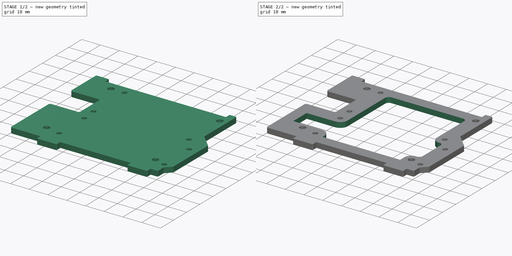
[diagram: build sequence overview — one tinted view per stage of 2, left to right]
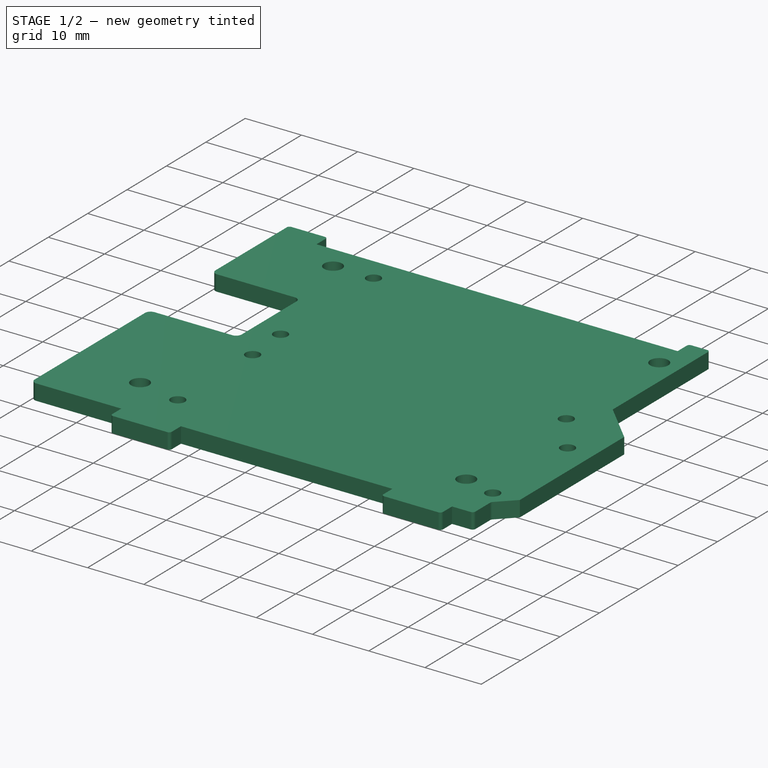
[diagram: stage 1 of 2 — iso view after this stage's code; geometry added in this stage tinted green]
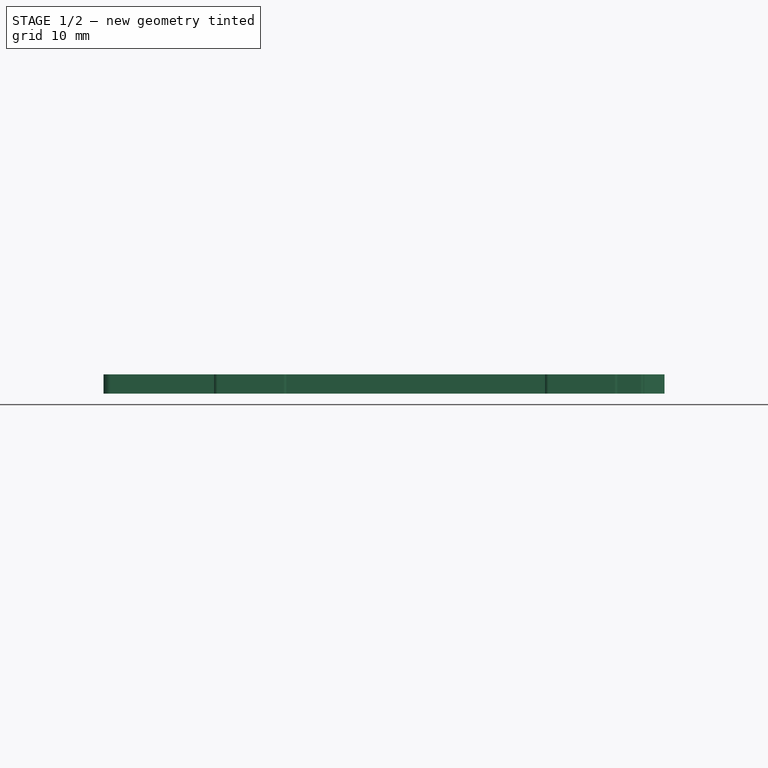
[diagram: stage 1 of 2 — front view after this stage's code; geometry added in this stage tinted green]
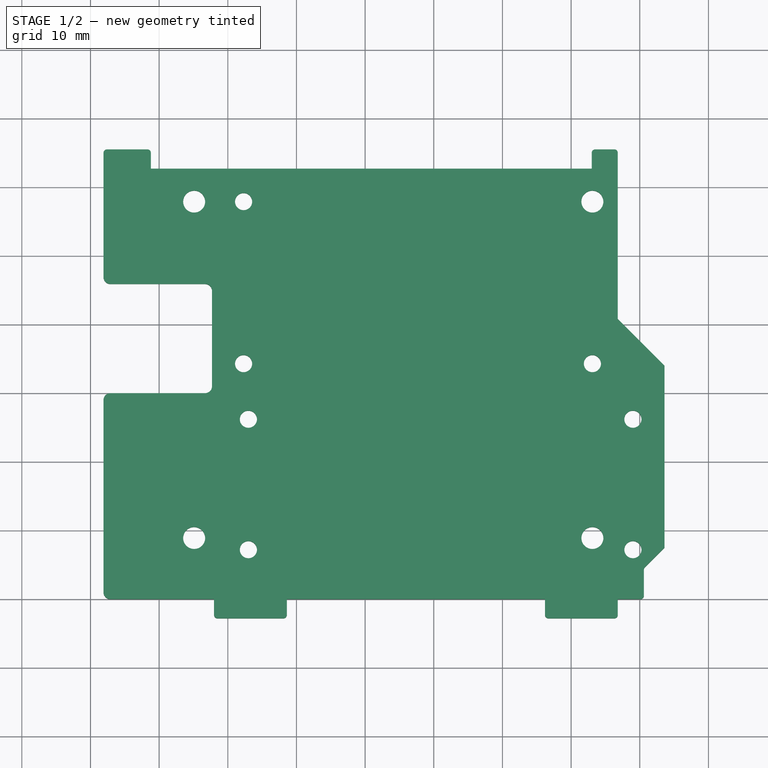
[diagram: stage 1 of 2 — top view after this stage's code; geometry added in this stage tinted green]
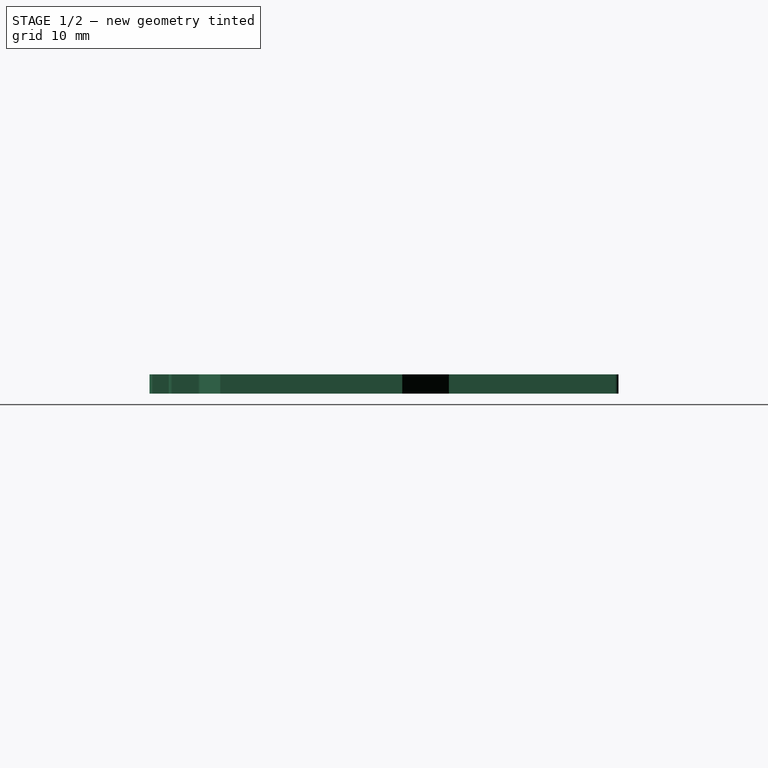
[diagram: stage 1 of 2 — right view after this stage's code; geometry added in this stage tinted green]
FCSTD DOCUMENT  (FreeCAD 0.21R33771 (Git))
Label: electronics_holder_new
License: All rights reserved
LicenseURL: http://en.wikipedia.org/wiki/All_rights_reserved
objects: Sketcher::SketchObject×3, PartDesign::Pad×1, PartDesign::Hole×1, PartDesign::Pocket×1, PartDesign::Body×1
note: 10 computed .brp shape members not serialized (recipe doc carries the construction recipe); baked Part::Feature solids carry a one-line shape summary decoded from their .brp

FEATURE [Sketcher::SketchObject] Sketch
  FullyConstrained = true
  MapMode = 5
  Support = -> [XY_Plane]
  sketch-geometry (54):
    g0: LineSegment StartX=1 StartY=0 StartZ=0 EndX=8 EndY=0 EndZ=0
    g1: LineSegment StartX=8 StartY=0 StartZ=0 EndX=8 EndY=-2.3 EndZ=0
    g2: LineSegment StartX=8.5 StartY=-2.8 StartZ=0 EndX=18.1 EndY=-2.8 EndZ=0
    g3: LineSegment StartX=18.6 StartY=-2.3 StartZ=0 EndX=18.6 EndY=0 EndZ=0
    g4: LineSegment StartX=18.6 StartY=0 StartZ=0 EndX=56.2 EndY=0 EndZ=0
    g5: LineSegment StartX=56.2 StartY=0 StartZ=0 EndX=56.2 EndY=-2.3 EndZ=0
    g6: LineSegment StartX=56.7 StartY=-2.8 StartZ=0 EndX=66.3 EndY=-2.8 EndZ=0
    g7: LineSegment StartX=66.8 StartY=-2.3 StartZ=0 EndX=66.8 EndY=0 EndZ=0
    g8: LineSegment StartX=66.8 StartY=0 StartZ=0 EndX=70.1 EndY=0 EndZ=0
    g9: LineSegment StartX=70.6 StartY=0.5 StartZ=0 EndX=70.6 EndY=4.29289 EndZ=0
    g10: LineSegment StartX=70.7464 StartY=4.64645 StartZ=0 EndX=73.6 EndY=7.5 EndZ=0
    g11: LineSegment StartX=73.6 StartY=7.5 StartZ=0 EndX=73.6 EndY=34 EndZ=0
    g12: LineSegment StartX=73.6 StartY=34 StartZ=0 EndX=66.8 EndY=40.8 EndZ=0
    g13: LineSegment StartX=66.8 StartY=40.8 StartZ=0 EndX=66.8 EndY=65 EndZ=0
    g14: LineSegment StartX=66.3 StartY=65.5 StartZ=0 EndX=63.5 EndY=65.5 EndZ=0
    g15: LineSegment StartX=63 StartY=65 StartZ=0 EndX=63 EndY=62.7 EndZ=0
    g16: LineSegment StartX=63 StartY=62.7 StartZ=0 EndX=-1.2 EndY=62.7 EndZ=0
    g17: LineSegment StartX=-1.2 StartY=62.7 StartZ=0 EndX=-1.2 EndY=65 EndZ=0
    g18: LineSegment StartX=-1.7 StartY=65.5 StartZ=0 EndX=-7.6 EndY=65.5 EndZ=0
    g19: LineSegment StartX=-8.1 StartY=65 StartZ=0 EndX=-8.1 EndY=46.9 EndZ=0
    g20: LineSegment StartX=-7.1 StartY=45.9 StartZ=0 EndX=6.7 EndY=45.9 EndZ=0
    g21: LineSegment StartX=6.7 StartY=18.8 StartZ=0 EndX=1 EndY=18.8 EndZ=0
    g22: LineSegment StartX=0 StartY=1 StartZ=0 EndX=0 EndY=17.8 EndZ=0
    g23: ArcOfCircle CenterX=6.7 CenterY=19.8 CenterZ=0 NormalX=0 NormalY=0 NormalZ=1 AngleXU=0 Radius=1 StartAngle=4.71239 EndAngle=6.28319
    g24: ArcOfCircle CenterX=6.7 CenterY=44.9 CenterZ=0 NormalX=0 NormalY=0 NormalZ=1 AngleXU=0 Radius=1 StartAngle=-9e-16 EndAngle=1.5708
    g25: ArcOfCircle CenterX=-7.1 CenterY=46.9 CenterZ=0 NormalX=0 NormalY=0 NormalZ=1 AngleXU=0 Radius=1 StartAngle=3.14159 EndAngle=4.71239
    g26: ArcOfCircle CenterX=-7.6 CenterY=65 CenterZ=0 NormalX=0 NormalY=0 NormalZ=1 AngleXU=0 Radius=0.5 StartAngle=1.5708 EndAngle=3.14159
    g27: ArcOfCircle CenterX=-1.7 CenterY=65 CenterZ=0 NormalX=0 NormalY=0 NormalZ=1 AngleXU=0 Radius=0.5 StartAngle=-1.24e-14 EndAngle=1.5708
    g28: ArcOfCircle CenterX=66.3 CenterY=65 CenterZ=0 NormalX=0 NormalY=0 NormalZ=1 AngleXU=0 Radius=0.5 StartAngle=4e-16 EndAngle=1.5708
    g29: ArcOfCircle CenterX=70.1 CenterY=0.5 CenterZ=0 NormalX=0 NormalY=0 NormalZ=1 AngleXU=0 Radius=0.5 StartAngle=4.71239 EndAngle=6.28319
    g30: ArcOfCircle CenterX=66.3 CenterY=-2.3 CenterZ=0 NormalX=0 NormalY=0 NormalZ=1 AngleXU=0 Radius=0.5 StartAngle=4.71239 EndAngle=6.28319
    g31: ArcOfCircle CenterX=56.7 CenterY=-2.3 CenterZ=0 NormalX=0 NormalY=0 NormalZ=1 AngleXU=0 Radius=0.5 StartAngle=3.14159 EndAngle=4.71239
    g32: ArcOfCircle CenterX=1 CenterY=17.8 CenterZ=0 NormalX=0 NormalY=0 NormalZ=1 AngleXU=0 Radius=1 StartAngle=1.5708 EndAngle=3.14159
    g33: ArcOfCircle CenterX=1 CenterY=1 CenterZ=0 NormalX=0 NormalY=0 NormalZ=1 AngleXU=0 Radius=1 StartAngle=3.14159 EndAngle=4.71239
    g34: ArcOfCircle CenterX=8.5 CenterY=-2.3 CenterZ=0 NormalX=0 NormalY=0 NormalZ=1 AngleXU=0 Radius=0.5 StartAngle=3.14159 EndAngle=4.71239
    g35: ArcOfCircle CenterX=18.1 CenterY=-2.3 CenterZ=0 NormalX=0 NormalY=0 NormalZ=1 AngleXU=0 Radius=0.5 StartAngle=4.71239 EndAngle=6.28319
    g36: ArcOfCircle CenterX=63.5 CenterY=65 CenterZ=0 NormalX=0 NormalY=0 NormalZ=1 AngleXU=0 Radius=0.5 StartAngle=1.5708 EndAngle=3.14159
    g37: Circle CenterX=5.1 CenterY=57.9 CenterZ=0 NormalX=0 NormalY=0 NormalZ=1 AngleXU=0 Radius=1.6
    g38: Circle CenterX=63.1 CenterY=57.9 CenterZ=0 NormalX=0 NormalY=0 NormalZ=1 AngleXU=0 Radius=1.6
    g39: Circle CenterX=5.1 CenterY=8.9 CenterZ=0 NormalX=0 NormalY=0 NormalZ=1 AngleXU=0 Radius=1.6
    g40: Circle CenterX=63.1 CenterY=8.9 CenterZ=0 NormalX=0 NormalY=0 NormalZ=1 AngleXU=0 Radius=1.6
    g41: LineSegment StartX=5.1 StartY=8.9 StartZ=0 EndX=5.1 EndY=57.9 EndZ=0
    g42: LineSegment StartX=5.1 StartY=57.9 StartZ=0 EndX=63.1 EndY=57.9 EndZ=0
    g43: LineSegment StartX=63.1 StartY=57.9 StartZ=0 EndX=63.1 EndY=8.9 EndZ=0
    g44: LineSegment StartX=63.1 StartY=8.9 StartZ=0 EndX=5.1 EndY=8.9 EndZ=0
    g45: LineSegment StartX=7.7 StartY=44.9 StartZ=0 EndX=7.7 EndY=31 EndZ=0
    g46: LineSegment StartX=7.7 StartY=31 StartZ=0 EndX=7.7 EndY=19.8 EndZ=0
    g47: ArcOfCircle CenterX=6.7 CenterY=31 CenterZ=0 NormalX=0 NormalY=0 NormalZ=1 AngleXU=0 Radius=1 StartAngle=4.71239 EndAngle=6.28319
    g48: LineSegment StartX=6.7 StartY=30 StartZ=0 EndX=-7.1 EndY=30 EndZ=0
    g49: LineSegment StartX=-8.1 StartY=29 StartZ=0 EndX=-8.1 EndY=1 EndZ=0
    g50: LineSegment StartX=-7.1 StartY=0 StartZ=0 EndX=1 EndY=0 EndZ=0
    g51: ArcOfCircle CenterX=-7.1 CenterY=29 CenterZ=0 NormalX=0 NormalY=0 NormalZ=1 AngleXU=0 Radius=1 StartAngle=1.5708 EndAngle=3.14159
    g52: ArcOfCircle CenterX=-7.1 CenterY=1 CenterZ=0 NormalX=0 NormalY=0 NormalZ=1 AngleXU=0 Radius=1 StartAngle=3.14159 EndAngle=4.71239
    g53: ArcOfCircle CenterX=71.1 CenterY=4.29289 CenterZ=0 NormalX=0 NormalY=0 NormalZ=1 AngleXU=0 Radius=0.5 StartAngle=2.35619 EndAngle=3.14159
  constraints (139):
    c: PointOnObject(g0,g-1)
    c: Coincident(g1,g0)
    c: Vertical(g1)
    c: PointOnObject(g3,g-1)
    c: Vertical(g3)
    c: Coincident(g4,g3)
    c: PointOnObject(g4,g-1)
    c: Coincident(g5,g4)
    c: Horizontal(g6)
    c: PointOnObject(g7,g-1)
    c: Vertical(g7)
    c: Horizontal(g8)
    c: Vertical(g9)
    c: Coincident(g11,g10)
    c: Vertical(g11)
    c: Coincident(g12,g11)
    c: Coincident(g13,g12)
    c: Vertical(g13)
    c: Vertical(g15)
    c: Horizontal(g16)
    c: Coincident(g17,g16)
    c: Vertical(g17)
    c: Horizontal(g18)
    c: Vertical(g19)
    c: Horizontal(g20)
    c: Horizontal(g21)
    c: Vertical(g22)
    c: Tangent(g21,g23) = 1.5708
    c: Tangent(g20,g24) = 1.5708
    c: Tangent(g19,g25) = -1.5708
    c: Tangent(g20,g25) = -1.5708
    c: Tangent(g19,g26) = -1.5708
    c: Tangent(g18,g26) = -1.5708
    c: Tangent(g18,g27) = -1.5708
    c: Tangent(g17,g27) = -1.5708
    c: Tangent(g14,g28) = -1.5708
    c: Tangent(g13,g28) = -1.5708
    c: Tangent(g8,g29) = -1.5708
    c: Tangent(g9,g29) = -1.5708
    c: Tangent(g7,g30) = -1.5708
    c: Tangent(g6,g30) = -1.5708
    c: Tangent(g5,g31) = -1.5708
    c: Tangent(g6,g31) = -1.5708
    c: Tangent(g21,g32) = -1.5708
    c: Tangent(g22,g32) = 1.5708
    c: Tangent(g22,g33) = 1.5708
    c: Tangent(g0,g33) = -1.5708
    c: Tangent(g1,g34) = -1.5708
    c: Tangent(g2,g34) = -1.5708
    c: Tangent(g3,g35) = -1.5708
    c: Tangent(g2,g35) = -1.5708
    c: Equal(g33,g32)
    c: Equal(g23,g33)
    c: Equal(g24,g33)
    c: Equal(g25,g33)
    c: Radius(g33) = 1
    c: Horizontal(g0)
    c: Horizontal(g2)
    c: Equal(g26,g27)
    c: Equal(g26,g34)
    c: Equal(g35,g26)
    c: Horizontal(g14)
    c: Tangent(g15,g36) = -1.5708
    c: Tangent(g14,g36) = -1.5708
    c: Equal(g36,g26)
    c: Equal(g28,g26)
    c: Equal(g26,g29)
    c: Vertical(g5)
    c: Coincident(g8,g7)
    c: Equal(g30,g26)
    c: Equal(g26,g31)
    c: Radius(g26) = 0.5
    c: DistanceX(g22,g0) = 8
    c: DistanceX(g0,g3) = 10.6
    c: Equal(g2,g6)
    c: DistanceX(g0,g7) = 58.8
    c: DistanceX(g22,g9) = 70.6
    c: DistanceX(g22,g10) = 73.6
    c: DistanceY(g7,g10) = 7.5
    c: DistanceX(g22,g46) = 7.7
    c: DistanceX(g19,g46) = 15.8
    c: DistanceX(g19,g16) = 6.9
    c: DistanceY(g7,g11) = 34
    c: DistanceY(g0,g21) = 18.8
    c: PointOnObject(g-1,g22)
    c: PointOnObject(g2,g6)
    c: DistanceY(g2,g0) = 2.8
    c: DistanceY(g16,g18) = 2.8
    c: PointOnObject(g18,g14)
    c: DistanceY(g21,g20) = 27.1
    c: DistanceY(g0,g16) = 62.7
    c: Angle(g12,g13) = 2.35619
    c: Coincident(g41,g39)
    c: Coincident(g41,g37)
    c: Vertical(g41)
    c: Coincident(g42,g37)
    c: Coincident(g42,g38)
    c: Horizontal(g42)
    c: Coincident(g43,g38)
    c: Coincident(g43,g40)
    c: Coincident(g44,g40)
    c: Coincident(g44,g39)
    c: Horizontal(g44)
    c: Vertical(g43)
    c: Equal(g39,g38)
    c: Equal(g39,g40)
    c: Diameter(g39) = 3.2
    c: DistanceX(g22,g39) = 5.1
    c: DistanceY(g0,g39) = 8.9
    c: DistanceY(g39,g37) = 49
    c: DistanceX(g39,g40) = 58
    c: Equal(g37,g39)
    c: DistanceX(g15,g13) = 3.8
    c: DistanceX(g17,g15) = 64.2
    c: Coincident(g16,g15)
    c: Coincident(g45,g46)
    c: Vertical(g45)
    c: Vertical(g46)
    c: Tangent(g47,g45) = 1.5708
    c: Horizontal(g48)
    c: Vertical(g49)
    c: Horizontal(g50)
    c: Tangent(g48,g51) = -1.5708
    c: Tangent(g49,g51) = -1.5708
    c: Tangent(g49,g52) = -1.5708
    c: Tangent(g50,g52) = -1.5708
    c: Equal(g52,g51)
    c: Equal(g51,g47)
    c: Equal(g47,g33)
    c: DistanceY(g0,g48) = 30
    c: Coincident(g50,g0)
    c: Tangent(g48,g47) = 1.5708
    c: Tangent(g45,g24) = 1.5708
    c: Tangent(g46,g23) = 1.5708
    c: PointOnObject(g19,g49)
    c: Tangent(g10,g53) = 1.5708
    c: Tangent(g9,g53) = 1.5708
    c: Angle(g9,g10) = 2.35619
    c: Equal(g36,g53)
FEATURE [PartDesign::Pad] Pad
  Direction = (0,0,1)
  Length = 2.8
  Length2 = 10
  Profile = -> Sketch
  ReferenceAxis = -> Sketch [N_Axis]
  Type = 0
FEATURE [Sketcher::SketchObject] Sketch001
  ExternalGeometry = -> [Pad]
  FullyConstrained = true
  MapMode = 5
  Placement = pos=(0,0,2.8) rot=(0,0,1;0rad)
  Support = -> [Pad]
  sketch-geometry (16):
    g0: LineSegment StartX=13 StartY=26.2 StartZ=0 EndX=69 EndY=26.2 EndZ=0
    g1: LineSegment StartX=69 StartY=26.2 StartZ=0 EndX=69 EndY=7.2 EndZ=0
    g2: LineSegment StartX=69 StartY=7.2 StartZ=0 EndX=13 EndY=7.2 EndZ=0
    g3: LineSegment StartX=13 StartY=7.2 StartZ=0 EndX=13 EndY=26.2 EndZ=0
    g4: LineSegment StartX=12.3 StartY=57.9 StartZ=0 EndX=63.1 EndY=57.9 EndZ=0
    g5: LineSegment StartX=63.1 StartY=57.9 StartZ=0 EndX=63.1 EndY=34.3 EndZ=0
    g6: LineSegment StartX=63.1 StartY=34.3 StartZ=0 EndX=12.3 EndY=34.3 EndZ=0
    g7: LineSegment StartX=12.3 StartY=34.3 StartZ=0 EndX=12.3 EndY=57.9 EndZ=0
    g8: Circle CenterX=12.3 CenterY=57.9 CenterZ=0 NormalX=0 NormalY=0 NormalZ=1 AngleXU=0 Radius=1.25
    g9: Circle CenterX=12.3 CenterY=34.3 CenterZ=0 NormalX=0 NormalY=0 NormalZ=1 AngleXU=0 Radius=1.25
    g10: Circle CenterX=63.1 CenterY=34.3 CenterZ=0 NormalX=0 NormalY=0 NormalZ=1 AngleXU=0 Radius=1.25
    g11: Circle CenterX=63.1 CenterY=57.9 CenterZ=0 NormalX=0 NormalY=0 NormalZ=1 AngleXU=0 Radius=1.25
    g12: Circle CenterX=13 CenterY=26.2 CenterZ=0 NormalX=0 NormalY=0 NormalZ=1 AngleXU=0 Radius=1.25
    g13: Circle CenterX=13 CenterY=7.2 CenterZ=0 NormalX=0 NormalY=0 NormalZ=1 AngleXU=0 Radius=1.25
    g14: Circle CenterX=69 CenterY=7.2 CenterZ=0 NormalX=0 NormalY=0 NormalZ=1 AngleXU=0 Radius=1.25
    g15: Circle CenterX=69 CenterY=26.2 CenterZ=0 NormalX=0 NormalY=0 NormalZ=1 AngleXU=0 Radius=1.25
  constraints (39):
    c: Coincident(g0,g1)
    c: Coincident(g1,g2)
    c: Coincident(g2,g3)
    c: Coincident(g3,g0)
    c: Horizontal(g0)
    c: Horizontal(g2)
    c: Vertical(g1)
    c: Vertical(g3)
    c: Coincident(g4,g5)
    c: Coincident(g5,g6)
    c: Coincident(g6,g7)
    c: Coincident(g7,g4)
    c: Coincident(g8,g4)
    c: Coincident(g9,g6)
    c: Coincident(g10,g5)
    c: Coincident(g11,g4)
    c: Coincident(g12,g0)
    c: Coincident(g13,g2)
    c: Coincident(g14,g1)
    c: Coincident(g15,g0)
    c: Equal(g13,g12)
    c: Equal(g12,g9)
    c: Equal(g9,g8)
    c: Equal(g8,g11)
    c: Equal(g11,g10)
    c: Equal(g10,g15)
    c: Equal(g15,g14)
    c: Diameter(g13) = 2.5
    c: DistanceY(g3,g3) = 19
    c: DistanceX(g2,g2) = 56
    c: DistanceY(g-1,g13) = 7.2
    c: Distance(g6) = 50.8
    c: Distance(g5) = 23.6
    c: Horizontal(g4)
    c: Vertical(g7)
    c: Vertical(g5)
    c: Horizontal(g6)
    c: Coincident(g11,g-3)
    c: DistanceX(g-1,g13) = 13
FEATURE [PartDesign::Hole] Hole
  BaseFeature = -> Pad
  CustomThreadClearance = 0
  Depth = 215.181
  DepthType = 1
  Diameter = 2.5
  DrillForDepth = false
  DrillPoint = 1
  DrillPointAngle = 118
  HoleCutCountersinkAngle = 90
  HoleCutCustomValues = false
  HoleCutDepth = 0
  HoleCutDiameter = 6.1
  HoleCutType = 0
  ModelThread = false
  Profile = -> Sketch001
  Tapered = false
  TaperedAngle = 90
  ThreadClass = 0
  ThreadDepth = 215.181
  ThreadDepthType = 0
  ThreadDirection = 0
  ThreadFit = 0
  ThreadSize = 0
  ThreadType = 0
  Threaded = false
  UseCustomThreadClearance = false
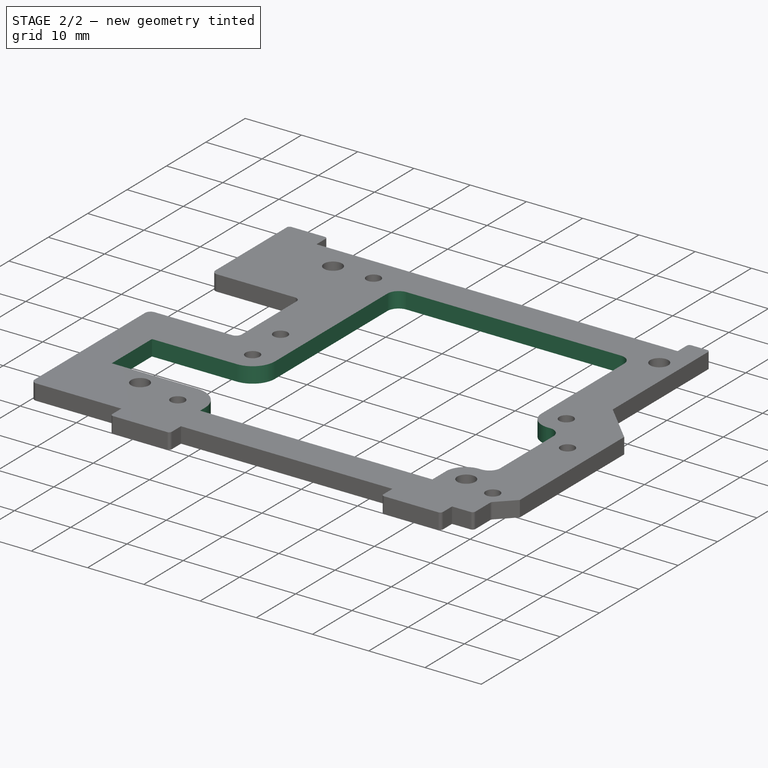
[diagram: stage 2 of 2 — iso view after this stage's code; geometry added in this stage tinted green]
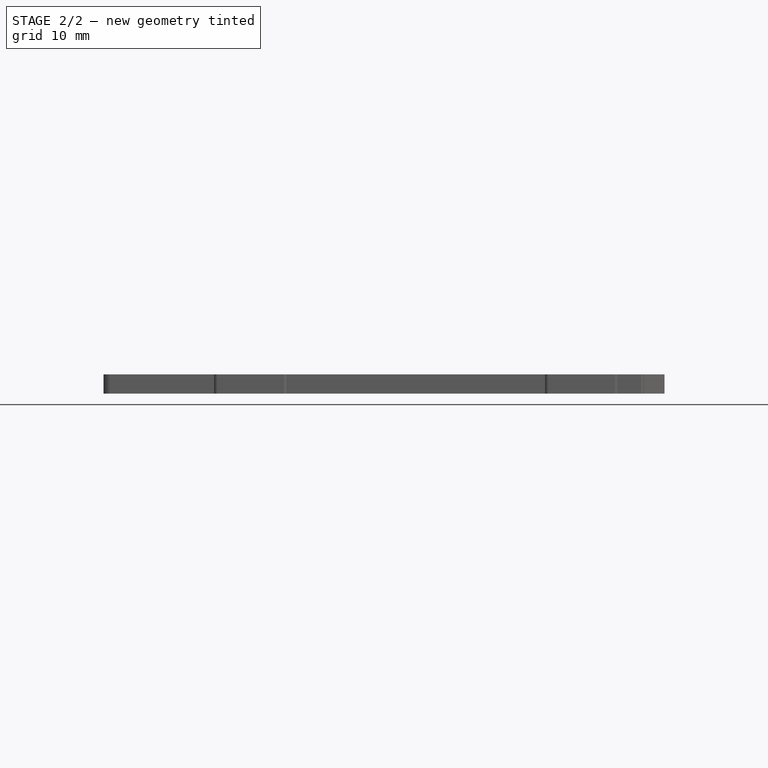
[diagram: stage 2 of 2 — front view after this stage's code; geometry added in this stage tinted green]
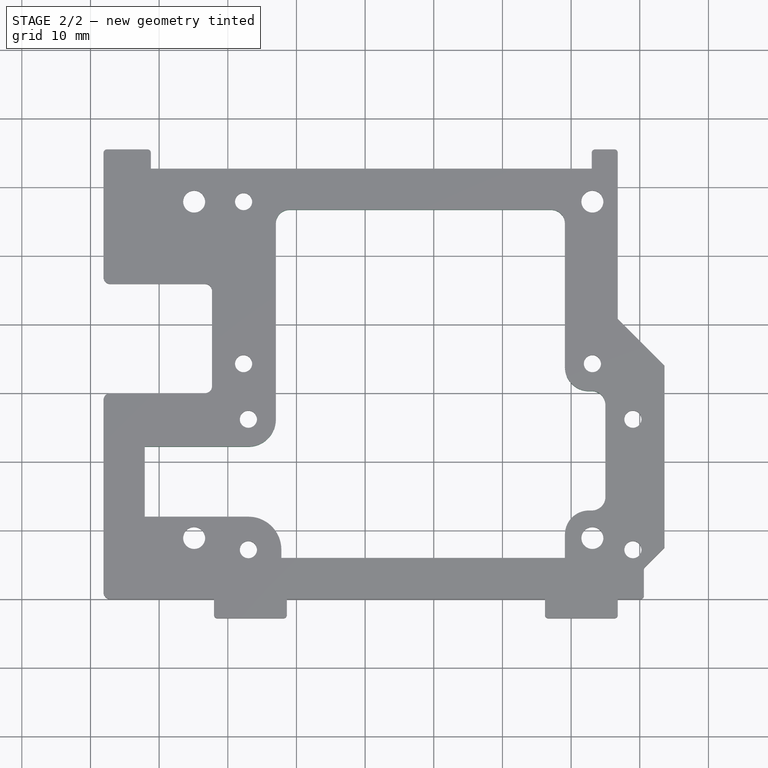
[diagram: stage 2 of 2 — top view after this stage's code; geometry added in this stage tinted green]
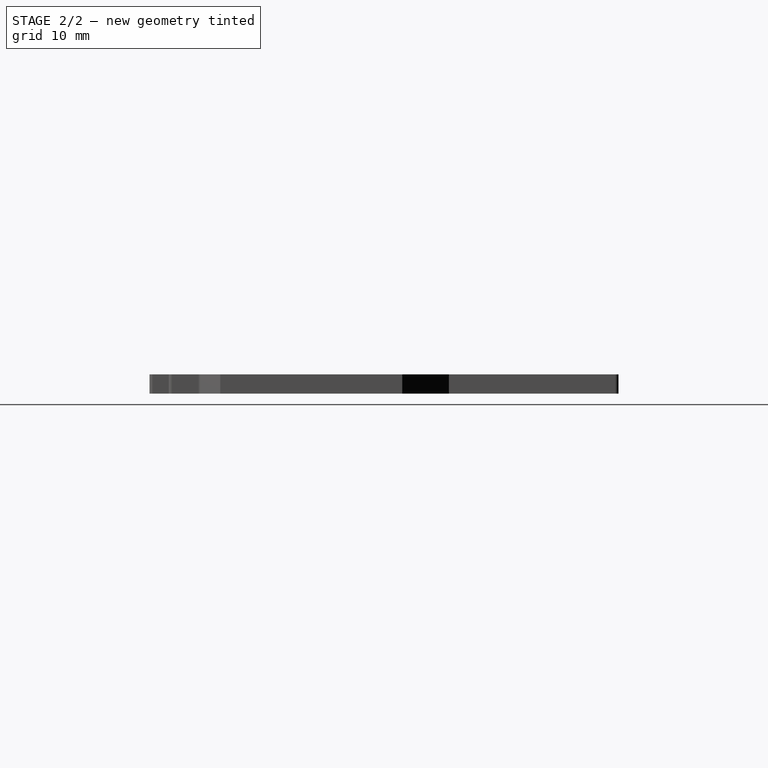
[diagram: stage 2 of 2 — right view after this stage's code; geometry added in this stage tinted green]
FEATURE [Sketcher::SketchObject] Sketch002
  ExternalGeometry = -> [Hole]
  FullyConstrained = true
  MapMode = 5
  Placement = pos=(0,0,2.8) rot=(0,0,1;0rad)
  Support = -> [Hole]
  sketch-geometry (20):
    g0: LineSegment StartX=57.1 StartY=56.7 StartZ=0 EndX=19 EndY=56.7 EndZ=0
    g1: LineSegment StartX=17 StartY=54.7 StartZ=0 EndX=17 EndY=26.2 EndZ=0
    g2: LineSegment StartX=17.8 StartY=6 StartZ=0 EndX=59.1 EndY=6 EndZ=0
    g3: LineSegment StartX=59.1 StartY=6 StartZ=0 EndX=59.1 EndY=9.4 EndZ=0
    g4: LineSegment StartX=-2.1 StartY=22.2 StartZ=0 EndX=13 EndY=22.2 EndZ=0
    g5: LineSegment StartX=13 StartY=12 StartZ=0 EndX=-2.1 EndY=12 EndZ=0
    g6: LineSegment StartX=-2.1 StartY=12 StartZ=0 EndX=-2.1 EndY=22.2 EndZ=0
    g7: LineSegment StartX=62.6 StartY=30.3 StartZ=0 EndX=63 EndY=30.3 EndZ=0
    g8: LineSegment StartX=65 StartY=28.3 StartZ=0 EndX=65 EndY=14.9 EndZ=0
    g9: LineSegment StartX=63 StartY=12.9 StartZ=0 EndX=62.6 EndY=12.9 EndZ=0
    g10: LineSegment StartX=17.8 StartY=7.2 StartZ=0 EndX=17.8 EndY=6 EndZ=0
    g11: LineSegment StartX=59.1 StartY=33.8 StartZ=0 EndX=59.1 EndY=54.7 EndZ=0
    g12: ArcOfCircle CenterX=13 CenterY=26.2 CenterZ=0 NormalX=0 NormalY=0 NormalZ=1 AngleXU=0 Radius=4 StartAngle=4.71239 EndAngle=6.28319
    g13: ArcOfCircle CenterX=13 CenterY=7.2 CenterZ=0 NormalX=0 NormalY=0 NormalZ=1 AngleXU=0 Radius=4.8 StartAngle=0 EndAngle=1.5708
    g14: ArcOfCircle CenterX=62.6 CenterY=9.4 CenterZ=0 NormalX=0 NormalY=0 NormalZ=1 AngleXU=0 Radius=3.5 StartAngle=1.5708 EndAngle=3.14159
    g15: ArcOfCircle CenterX=63 CenterY=14.9 CenterZ=0 NormalX=0 NormalY=0 NormalZ=1 AngleXU=0 Radius=2 StartAngle=4.71239 EndAngle=6.28319
    g16: ArcOfCircle CenterX=63 CenterY=28.3 CenterZ=0 NormalX=0 NormalY=0 NormalZ=1 AngleXU=0 Radius=2 StartAngle=5e-16 EndAngle=1.5708
    g17: ArcOfCircle CenterX=62.6 CenterY=33.8 CenterZ=0 NormalX=0 NormalY=0 NormalZ=1 AngleXU=0 Radius=3.5 StartAngle=3.14159 EndAngle=4.71239
    g18: ArcOfCircle CenterX=57.1 CenterY=54.7 CenterZ=0 NormalX=0 NormalY=0 NormalZ=1 AngleXU=0 Radius=2 StartAngle=1.2e-15 EndAngle=1.5708
    g19: ArcOfCircle CenterX=19 CenterY=54.7 CenterZ=0 NormalX=0 NormalY=0 NormalZ=1 AngleXU=0 Radius=2 StartAngle=1.5708 EndAngle=3.14159
  constraints (50):
    c: Coincident(g10,g2)
    c: Coincident(g2,g3)
    c: Horizontal(g0)
    c: Horizontal(g2)
    c: Vertical(g1)
    c: Vertical(g3)
    c: Coincident(g5,g6)
    c: Coincident(g6,g4)
    c: Horizontal(g4)
    c: Horizontal(g5)
    c: Vertical(g6)
    c: Horizontal(g7)
    c: Horizontal(g9)
    c: Vertical(g8)
    c: DistanceX(g-5,g5) = 6
    c: Tangent(g1,g12) = 1.5708
    c: Tangent(g4,g12) = -1.5708
    c: Tangent(g5,g13) = -1.5708
    c: Tangent(g10,g13) = 1.5708
    c: Tangent(g3,g14) = 1.5708
    c: Tangent(g9,g14) = -1.5708
    c: Tangent(g8,g15) = 1.5708
    c: Tangent(g9,g15) = 1.5708
    c: Tangent(g7,g16) = 1.5708
    c: Tangent(g8,g16) = 1.5708
    c: Tangent(g7,g17) = -1.5708
    c: Tangent(g11,g17) = 1.5708
    c: Tangent(g0,g18) = -1.5708
    c: Tangent(g11,g18) = -1.5708
    c: Tangent(g0,g19) = -1.5708
    c: Tangent(g1,g19) = -1.5708
    c: Coincident(g12,g-9)
    c: Coincident(g13,g-8)
    c: Vertical(g10)
    c: DistanceY(g-6,g5) = 12
    c: DistanceY(g-1,g2) = 6
    c: DistanceX(g8,g-10) = 4
    c: DistanceY(g4,g12) = 4
    c: DistanceY(g-11,g9) = 4
    c: DistanceY(g7,g-12) = 4
    c: Vertical(g11)
    c: DistanceY(g0,g-3) = 6
    c: Radius(g19) = 2
    c: Equal(g19,g18)
    c: Equal(g18,g16)
    c: Equal(g15,g16)
    c: DistanceX(g11,g-12) = 4
    c: DistanceX(g2,g-11) = 4
    c: Radius(g17) = 3.5
    c: Radius(g14) = 3.5
FEATURE [PartDesign::Pocket] Pocket
  BaseFeature = -> Hole
  Direction = (0,0,-1)
  Length = 5
  Length2 = 5
  Profile = -> Sketch002
  ReferenceAxis = -> Sketch002 [N_Axis]
  Type = 1
FEATURE [PartDesign::Body] Body
  Group = -> [Sketch,Pad,Sketch001,Hole,Sketch002,Pocket]
  Origin = -> Origin
  Tip = -> Pocket
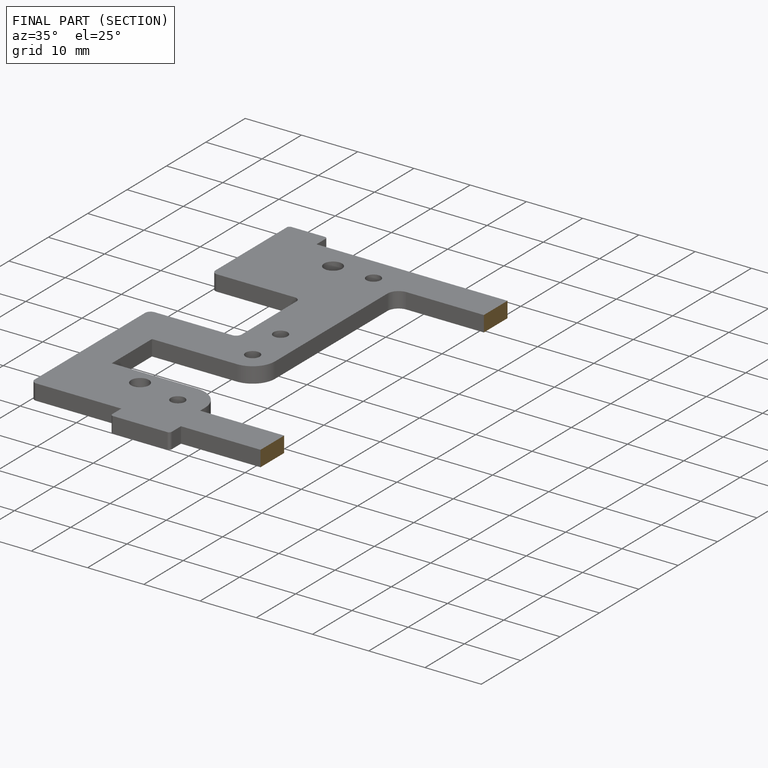
[diagram: finished part — half-section view (interior)]
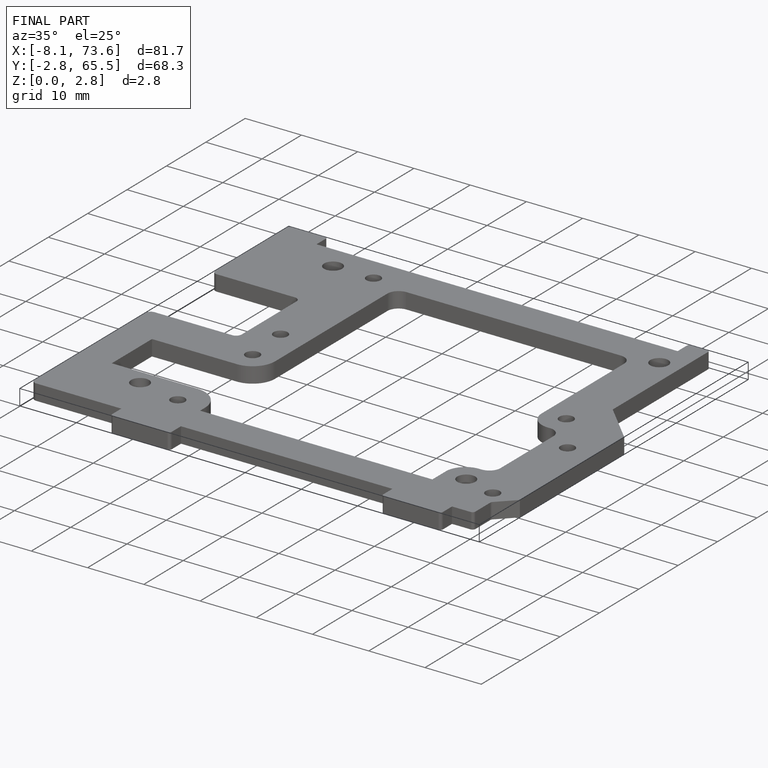
[diagram: finished part — iso view with bounding-box wireframe]
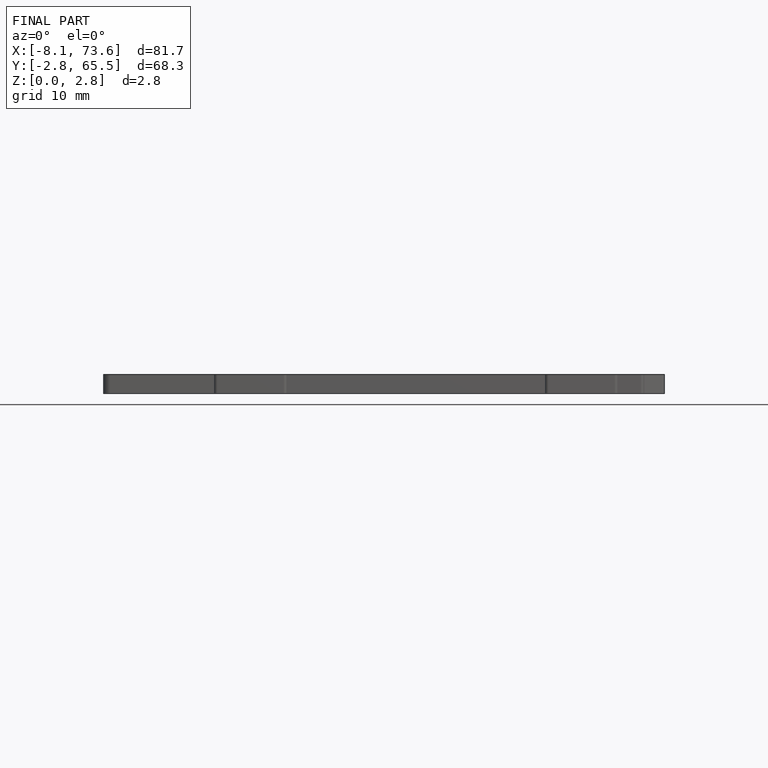
[diagram: finished part — front view with bounding-box wireframe]
